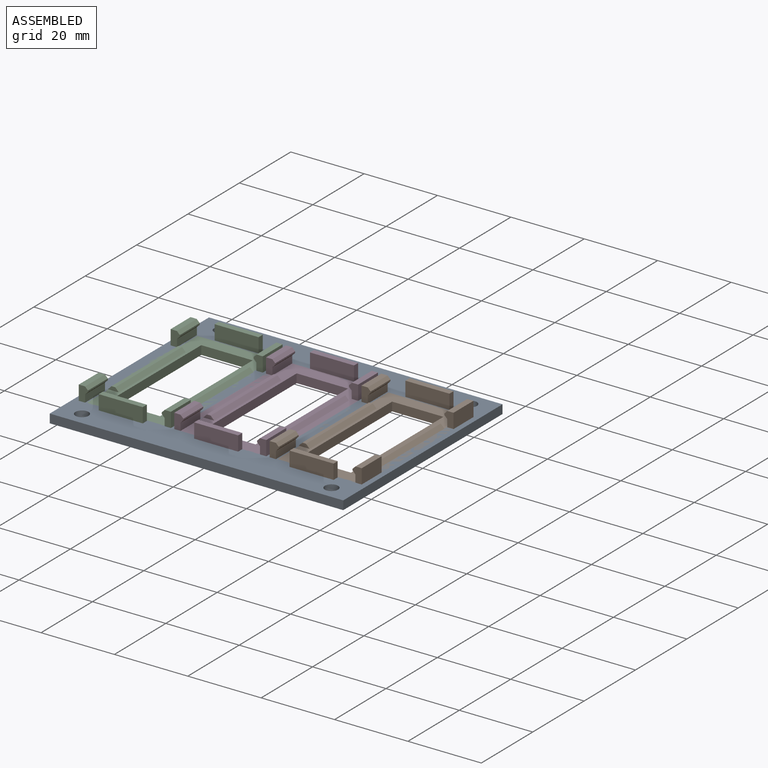
[diagram: assembled view]
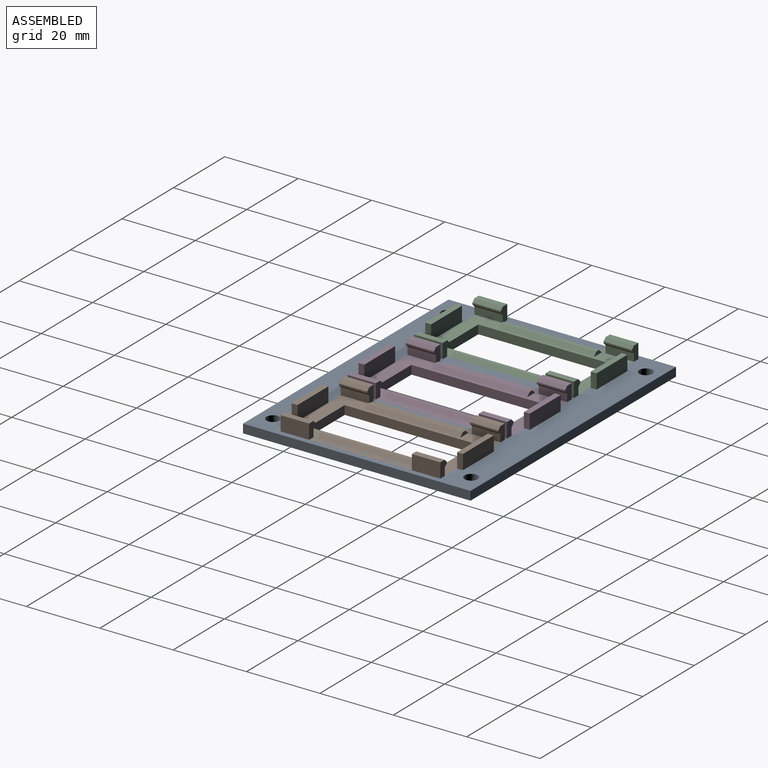
[diagram: assembled view, second angle]
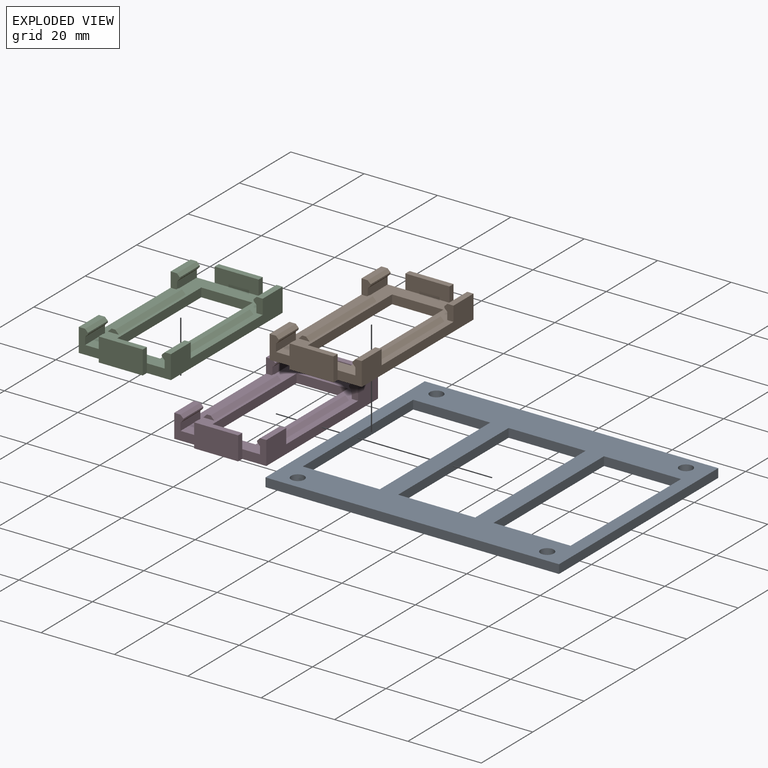
[diagram: exploded view]
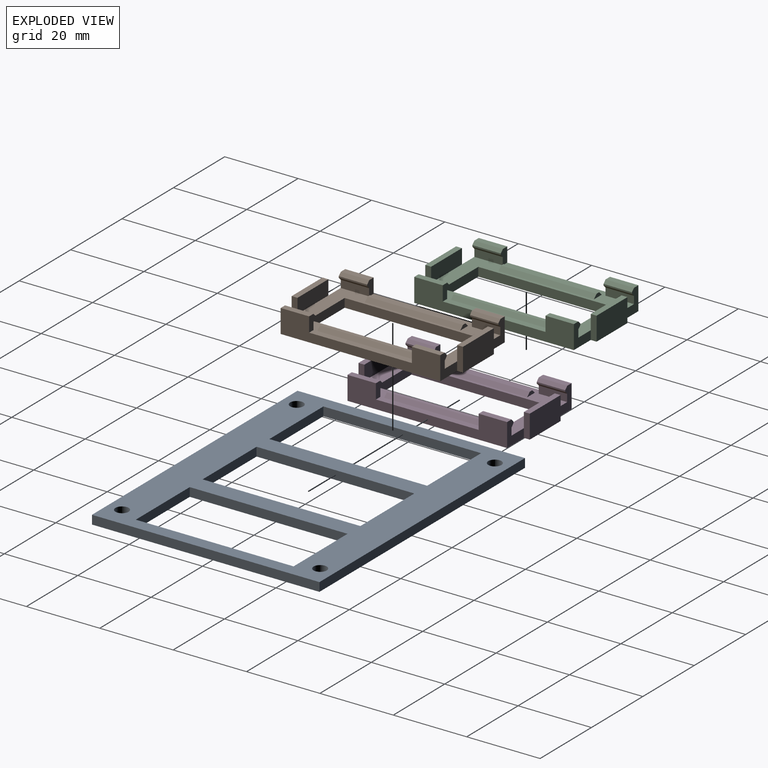
[diagram: exploded view, second angle]
ASSEMBLY  parts=4 mates=3
PART A: 22 faces, bbox 80x62x2.4 mm
  f0: plane 80x2.4mm, normal (0,1,0), area 192mm2, adj f1,f19,f20,f21
  f1: plane 62x2.4mm, normal (-1,0,0), area 148.8mm2, adj f0,f2,f20,f21
  f2: plane 80x2.4mm, normal (0,-1,0), area 192mm2, adj f1,f19,f20,f21
  f3: plane 43x2.4mm, normal (1,0,0), area 103.2mm2, adj f4,f12,f20,f21
  f4: plane 21x2.4mm, normal (0,-1,0), area 50.4mm2, adj f3,f5,f20,f21
  f5: plane 43x2.4mm, normal (-1,0,0), area 103.2mm2, adj f4,f12,f20,f21
  f6: plane 43x2.4mm, normal (1,0,0), area 103.2mm2, adj f7,f13,f20,f21
  f7: plane 21x2.4mm, normal (0,-1,0), area 50.4mm2, adj f6,f8,f20,f21
  f8: plane 43x2.4mm, normal (-1,0,0), area 103.2mm2, adj f7,f13,f20,f21
  f9: plane 43x2.4mm, normal (1,0,0), area 103.2mm2, adj f10,f14,f20,f21
  f10: plane 21x2.4mm, normal (0,-1,0), area 50.4mm2, adj f9,f11,f20,f21
  f11: plane 43x2.4mm, normal (-1,0,0), area 103.2mm2, adj f10,f14,f20,f21
  f12: plane 21x2.4mm, normal (0,1,0), area 50.4mm2, adj f3,f5,f20,f21
  f13: plane 21x2.4mm, normal (0,1,0), area 50.4mm2, adj f6,f8,f20,f21
  f14: plane 21x2.4mm, normal (0,1,0), area 50.4mm2, adj f9,f11,f20,f21
  f15: cylinder r=1.8mm len=3.6mm, axis (0,0,1), area 27.1mm2, adj f20,f21
  f16: cylinder r=1.8mm len=3.6mm, axis (0,0,1), area 27.1mm2, adj f20,f21
  f17: cylinder r=1.8mm len=3.6mm, axis (0,0,1), area 27.1mm2, adj f20,f21
  f18: cylinder r=1.8mm len=3.6mm, axis (0,0,1), area 27.1mm2, adj f20,f21
  f19: plane 62x2.4mm, normal (1,0,0), area 148.8mm2, adj f0,f2,f20,f21
  f20: plane 80x62mm, normal (0,0,-1), area 2210.3mm2, adj f0,f1,f2,f3,f4,f5,f6,f7
  f21: plane 80x62mm, normal (0,0,1), area 2210.3mm2, adj f0,f1,f2,f3,f4,f5,f6,f7
PART B: 56 faces, bbox 46.7x25.1x6.4 mm
  f0: plane 7.75x1.7mm, normal (0,0,1), area 13.2mm2, adj f6,f11,f14,f50
  f1: plane 7.75x1.7mm, normal (0,0,1), area 13.2mm2, adj f10,f18,f19,f48
  f2: plane 7.75x0.4mm, normal (0,-1,0), area 3.1mm2, adj f13,f39,f41,f51
  f3: plane 7.75x0.4mm, normal (0,1,0), area 3.1mm2, adj f8,f10,f18,f48
  f4: plane 7.75x2.03mm, normal (0,-1,0), area 15.7mm2, adj f12,f13,f39,f51
  f5: plane 7.75x2.03mm, normal (0,-1,0), area 15.7mm2, adj f9,f12,f14,f50
  f6: plane 43.5x6.4mm, normal (0,1,0), area 166.4mm2, adj f0,f12,f13,f14,f28,f29,f50,f51
  f7: plane 7.75x2.03mm, normal (0,1,0), area 15.7mm2, adj f8,f12,f18,f48
  f8: plane 7.75x0.78mm, normal (0,0.71,-0.71), area 8.5mm2, adj f3,f7,f18,f48
  f9: plane 7.75x0.78mm, normal (0,-0.71,-0.71), area 8.5mm2, adj f5,f14,f36,f50
  f10: plane 7.75x0.8mm, normal (0,0.71,0.71), area 8.8mm2, adj f1,f3,f18,f48
  f11: plane 7.75x0.8mm, normal (0,-0.71,0.71), area 8.8mm2, adj f0,f14,f36,f50
  f12: plane 43.5x25.1mm, normal (0,0,1), area 378.4mm2, adj f4,f5,f6,f7,f13,f14,f18,f19
  f13: plane 6.55x6.4mm, normal (1,0,0), area 23.5mm2, adj f2,f4,f6,f12,f27,f28,f29,f39
  f14: plane 6.55x6.4mm, normal (-1,0,0), area 23.5mm2, adj f0,f5,f6,f9,f11,f12,f15,f28
  f15: plane 6.4x1.6mm, normal (0,1,0), area 10.2mm2, adj f14,f16,f28,f32,f33
  f16: plane 12x6.4mm, normal (-1,0,0), area 76.8mm2, adj f15,f17,f28,f33
  f17: plane 6.4x1.6mm, normal (0,-1,0), area 10.2mm2, adj f16,f18,f28,f32,f33
  f18: plane 6.55x6.4mm, normal (-1,0,0), area 23.5mm2, adj f1,f3,f7,f8,f10,f12,f17,f19
  f19: plane 43.5x6.4mm, normal (0,-1,0), area 166.4mm2, adj f1,f12,f18,f20,f28,f31,f48,f49
  f20: plane 6.55x6.4mm, normal (1,0,0), area 23.5mm2, adj f12,f19,f21,f28,f30,f31,f37,f38
  f21: plane 6.4x1.6mm, normal (0,-1,0), area 10.2mm2, adj f20,f22,f28,f34,f35
  f22: plane 12x6.4mm, normal (1,0,0), area 76.8mm2, adj f21,f27,f28,f35
  f23: plane 36x2.4mm, normal (0,1,0), area 86.4mm2, adj f12,f24,f26,f28
  f24: plane 14x2.4mm, normal (1,0,0), area 33.6mm2, adj f12,f23,f25,f28
  f25: plane 36x2.4mm, normal (0,-1,0), area 86.4mm2, adj f12,f24,f26,f28
  f26: plane 14x2.4mm, normal (-1,0,0), area 33.6mm2, adj f12,f23,f25,f28
  f27: plane 6.4x1.6mm, normal (0,1,0), area 10.2mm2, adj f13,f22,f28,f34,f35
  f28: plane 46.7x25.1mm, normal (0,0,-1), area 626.3mm2, adj f6,f13,f14,f15,f16,f17,f18,f19
  f29: plane 7.75x1.7mm, normal (0,0,1), area 13.2mm2, adj f6,f13,f41,f51
  f30: plane 7.75x2.03mm, normal (0,1,0), area 15.7mm2, adj f12,f20,f38,f49
  f31: plane 7.75x1.7mm, normal (0,0,1), area 13.2mm2, adj f19,f20,f40,f49
  f32: plane 12x4mm, normal (1,0,0), area 48mm2, adj f12,f15,f17,f33
  f33: plane 12x1.6mm, normal (0,0,1), area 19.2mm2, adj f15,f16,f17,f32
  f34: plane 12x4mm, normal (-1,0,0), area 48mm2, adj f12,f21,f27,f35
  f35: plane 12x1.6mm, normal (0,0,1), area 19.2mm2, adj f21,f22,f27,f34
  f36: plane 7.75x0.4mm, normal (0,-1,0), area 3.1mm2, adj f9,f11,f14,f50
  f37: plane 7.75x0.4mm, normal (0,1,0), area 3.1mm2, adj f20,f38,f40,f49
  f38: plane 7.75x0.78mm, normal (0,0.71,-0.71), area 8.5mm2, adj f20,f30,f37,f49
  f39: plane 7.75x0.78mm, normal (0,-0.71,-0.71), area 8.5mm2, adj f2,f4,f13,f51
  f40: plane 7.75x0.8mm, normal (0,0.71,0.71), area 8.8mm2, adj f20,f31,f37,f49
  f41: plane 7.75x0.8mm, normal (0,-0.71,0.71), area 8.8mm2, adj f2,f13,f29,f51
  f42: plane 26x1mm, normal (0,0,1), area 26mm2, adj f43,f44,f53,f55
  f43: plane 3x1mm, normal (1,0,0), area 2mm2, adj f12,f42,f53,f55
  f44: plane 3x1mm, normal (-1,0,0), area 2mm2, adj f12,f42,f53,f55
  f45: plane 26x1mm, normal (0,0,1), area 26mm2, adj f46,f47,f52,f54
  f46: plane 3x1mm, normal (1,0,0), area 2mm2, adj f12,f45,f52,f54
  f47: plane 3x1mm, normal (-1,0,0), area 2mm2, adj f12,f45,f52,f54
  f48: plane 4x2.5mm, normal (1,0,0), area 7.8mm2, adj f1,f3,f7,f8,f10,f12,f19
  f49: plane 4x2.5mm, normal (-1,0,0), area 7.8mm2, adj f12,f19,f30,f31,f37,f38,f40
  f50: plane 4x2.5mm, normal (1,0,0), area 7.8mm2, adj f0,f5,f6,f9,f11,f12,f36
  f51: plane 4x2.5mm, normal (-1,0,0), area 7.8mm2, adj f2,f4,f6,f12,f29,f39,f41
  f52: plane 26x1mm, normal (0,0.71,0.71), area 36.8mm2, adj f12,f45,f46,f47
  f53: plane 26x1mm, normal (0,-0.71,0.71), area 36.8mm2, adj f12,f42,f43,f44
  f54: plane 26x1mm, normal (0,-0.71,0.71), area 36.8mm2, adj f12,f45,f46,f47
  f55: plane 26x1mm, normal (0,0.71,0.71), area 36.8mm2, adj f12,f42,f43,f44
PART C: same geometry as B
PART D: same geometry as B
PLACE A t=(0.02,0.05,1.25)mm
PLACE B rot(axis=(0,0,-1),90deg) t=(26.02,0.05,-23.75)mm
PLACE C rot(axis=(0,0,-1),90deg) t=(-25.98,0.05,-23.75)mm
PLACE D rot(axis=(0,0,-1),90deg) t=(0.02,0.05,-23.75)mm
MATE fastened D.f12 <-> A.f21  axis (0,0,1) through (0.02,0.05,1.25)mm
MATE fastened C.f12 <-> A.f21  axis (0,0,1) through (-25.98,0.05,1.25)mm
MATE fastened B.f12 <-> A.f21  axis (0,0,1) through (26.02,0.05,1.25)mm
